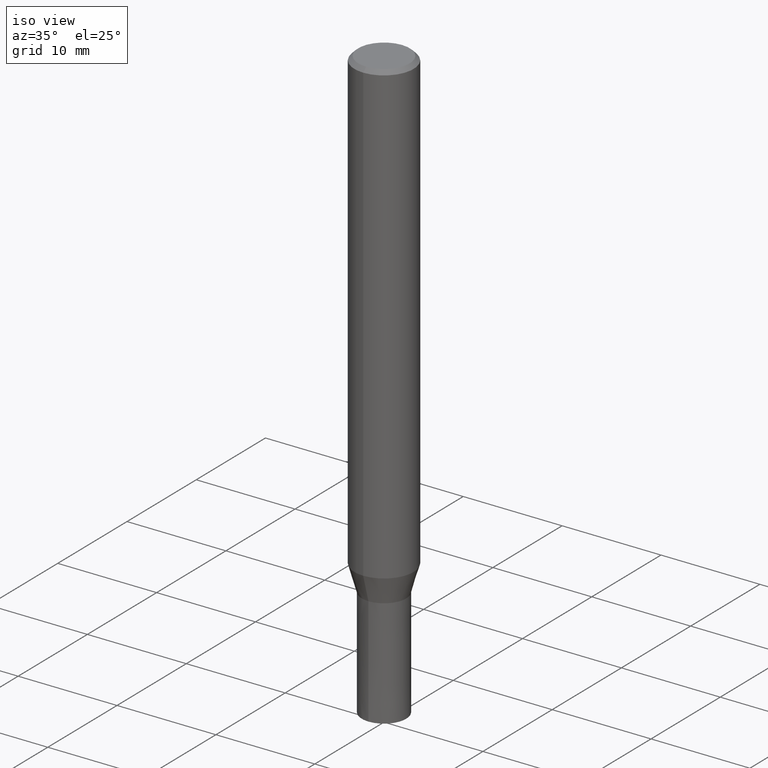
[diagram: clean part render]
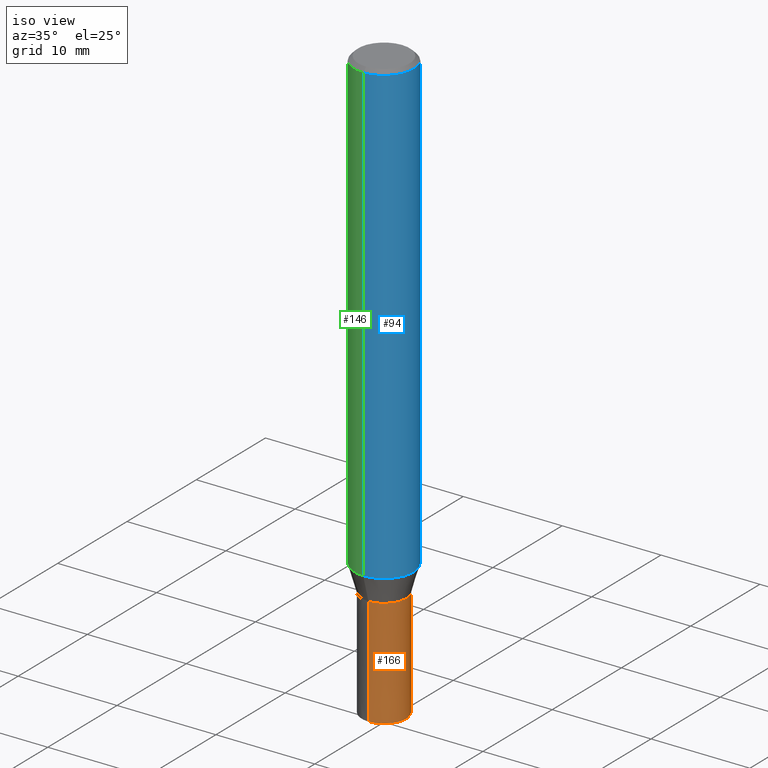
[diagram: same view with three faces highlighted in distinct colors, each labeled with its STEP entity id]
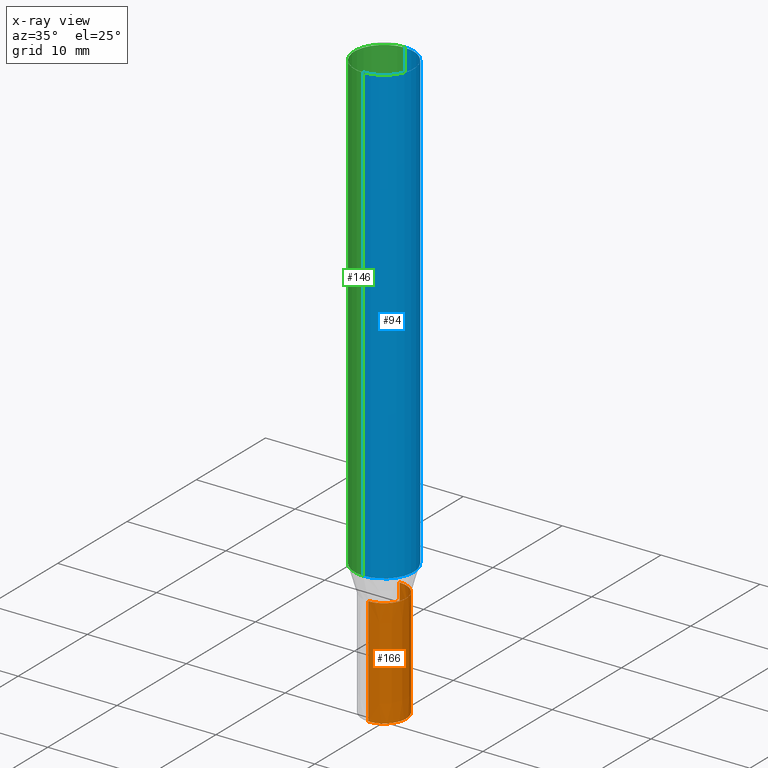
[diagram: x-ray of the same camera — body ghosted, the three highlighted faces saturated]
A machine part, iso view with three faces highlighted in distinct colors.
The next image is the same camera in x-ray (body ghosted, the three faces saturated) — at least one of them is partly hidden behind the body in this view.
Their STEP definitions:

[orange] entity #166 — the highlighted conical surface has half-angle 0.001 deg.
#86=VERTEX_POINT('',#207);
#90=EDGE_CURVE('',#148,#86,#212,.T.);
#92=EDGE_CURVE('',#156,#86,#214,.T.);
#96=EDGE_CURVE('',#108,#156,#219,.T.);
#108=VERTEX_POINT('',#232);
#120=EDGE_CURVE('',#148,#108,#247,.T.);
#148=VERTEX_POINT('',#278);
#156=VERTEX_POINT('',#286);
#166=ADVANCED_FACE('',(#297),#298,.T.);
#207=CARTESIAN_POINT('',(2.75524183546497E-016,-2.2499,-49.0));
#212=CIRCLE('',#341,2.2499);
#214=LINE('',#344,#345);
#219=CIRCLE('',#351,2.25);
#232=CARTESIAN_POINT('',(0.0,2.25,-60.0));
#247=LINE('',#387,#388);
#278=CARTESIAN_POINT('',(0.0,2.2499,-49.0));
#286=CARTESIAN_POINT('',(2.75536429610035E-016,-2.25,-60.0));
#297=FACE_OUTER_BOUND('',#449,.T.);
#298=CONICAL_SURFACE('',#450,2.24995,9.09090909067784E-006);
#341=AXIS2_PLACEMENT_3D('',#487,#488,#489);
#344=CARTESIAN_POINT('',(2.75530306578266E-016,-2.24995,-54.5));
#345=VECTOR('',#490,1.0);
#351=AXIS2_PLACEMENT_3D('',#499,#500,#501);
#387=CARTESIAN_POINT('',(-2.75530306578266E-016,2.24995,-54.5));
#388=VECTOR('',#541,1.0);
#449=EDGE_LOOP('',(#595,#596,#597,#598));
#450=AXIS2_PLACEMENT_3D('',#599,#600,#601);
#487=CARTESIAN_POINT('',(0.0,0.0,-49.0));
#488=DIRECTION('',(0.0,0.0,-1.0));
#489=DIRECTION('',(0.0,1.0,0.0));
#490=DIRECTION('',(-1.11327850343123E-021,9.09090909055262E-006,0.999999999958678));
#499=CARTESIAN_POINT('',(0.0,0.0,-60.0));
#500=DIRECTION('',(0.0,0.0,-1.0));
#501=DIRECTION('',(0.0,1.0,0.0));
#541=DIRECTION('',(-1.11327850343124E-021,9.09090909055262E-006,-0.999999999958678));
#595=ORIENTED_EDGE('',*,*,#120,.F.);
#596=ORIENTED_EDGE('',*,*,#90,.T.);
#597=ORIENTED_EDGE('',*,*,#92,.F.);
#598=ORIENTED_EDGE('',*,*,#96,.F.);
#599=CARTESIAN_POINT('',(0.0,0.0,-54.5));
#600=DIRECTION('',(0.0,-0.0,-1.0));
#601=DIRECTION('',(0.0,1.0,0.0));

[blue] entity #94 — the highlighted cylindrical surface (edge-blend (fillet) strip) has radius 3 mm, axis along (-0, -0, 1).
#94=ADVANCED_FACE('',(#216),#217,.T.);
#102=VERTEX_POINT('',#226);
#122=EDGE_CURVE('',#182,#152,#249,.T.);
#124=VERTEX_POINT('',#251);
#138=EDGE_CURVE('',#124,#182,#267,.T.);
#140=EDGE_CURVE('',#124,#102,#269,.T.);
#150=EDGE_CURVE('',#152,#102,#280,.T.);
#152=VERTEX_POINT('',#282);
#182=VERTEX_POINT('',#317);
#216=FACE_OUTER_BOUND('',#347,.T.);
#217=CYLINDRICAL_SURFACE('',#348,3.0);
#226=CARTESIAN_POINT('',(3.67381906146713E-016,-3.0,-0.399999999999999));
#249=CIRCLE('',#391,3.0);
#251=CARTESIAN_POINT('',(0.0,3.0,-0.399999999999999));
#267=LINE('',#414,#415);
#269=CIRCLE('',#418,3.0);
#280=LINE('',#431,#432);
#282=CARTESIAN_POINT('',(3.67381906146713E-016,-3.0,-46.384));
#317=CARTESIAN_POINT('',(0.0,3.0,-46.384));
#347=EDGE_LOOP('',(#492,#493,#494,#495));
#348=AXIS2_PLACEMENT_3D('',#496,#497,#498);
#391=AXIS2_PLACEMENT_3D('',#542,#543,#544);
#414=CARTESIAN_POINT('',(-3.67381906146713E-016,3.0,-23.392));
#415=VECTOR('',#568,1.0);
#418=AXIS2_PLACEMENT_3D('',#569,#570,#571);
#431=CARTESIAN_POINT('',(3.67381906146713E-016,-3.0,-23.392));
#432=VECTOR('',#583,1.0);
#492=ORIENTED_EDGE('',*,*,#138,.F.);
#493=ORIENTED_EDGE('',*,*,#140,.T.);
#494=ORIENTED_EDGE('',*,*,#150,.F.);
#495=ORIENTED_EDGE('',*,*,#122,.F.);
#496=CARTESIAN_POINT('',(0.0,0.0,-23.392));
#497=DIRECTION('',(-0.0,-0.0,1.0));
#498=DIRECTION('',(0.0,1.0,0.0));
#542=CARTESIAN_POINT('',(0.0,0.0,-46.384));
#543=DIRECTION('',(0.0,0.0,-1.0));
#544=DIRECTION('',(0.0,1.0,0.0));
#568=DIRECTION('',(0.0,0.0,-1.0));
#569=CARTESIAN_POINT('',(0.0,0.0,-0.399999999999999));
#570=DIRECTION('',(0.0,0.0,-1.0));
#571=DIRECTION('',(0.0,1.0,0.0));
#583=DIRECTION('',(-0.0,-0.0,1.0));

[green] entity #146 — the highlighted cylindrical surface (edge-blend (fillet) strip) has radius 3 mm, axis along (-0, -0, 1).
#102=VERTEX_POINT('',#226);
#124=VERTEX_POINT('',#251);
#126=EDGE_CURVE('',#152,#182,#253,.T.);
#138=EDGE_CURVE('',#124,#182,#267,.T.);
#146=ADVANCED_FACE('',(#275),#276,.T.);
#150=EDGE_CURVE('',#152,#102,#280,.T.);
#152=VERTEX_POINT('',#282);
#168=EDGE_CURVE('',#102,#124,#300,.T.);
#182=VERTEX_POINT('',#317);
#226=CARTESIAN_POINT('',(3.67381906146713E-016,-3.0,-0.399999999999999));
#251=CARTESIAN_POINT('',(0.0,3.0,-0.399999999999999));
#253=CIRCLE('',#396,3.0);
#267=LINE('',#414,#415);
#275=FACE_OUTER_BOUND('',#425,.T.);
#276=CYLINDRICAL_SURFACE('',#426,3.0);
#280=LINE('',#431,#432);
#282=CARTESIAN_POINT('',(3.67381906146713E-016,-3.0,-46.384));
#300=CIRCLE('',#453,3.0);
#317=CARTESIAN_POINT('',(0.0,3.0,-46.384));
#396=AXIS2_PLACEMENT_3D('',#545,#546,#547);
#414=CARTESIAN_POINT('',(-3.67381906146713E-016,3.0,-23.392));
#415=VECTOR('',#568,1.0);
#425=EDGE_LOOP('',(#576,#577,#578,#579));
#426=AXIS2_PLACEMENT_3D('',#580,#581,#582);
#431=CARTESIAN_POINT('',(3.67381906146713E-016,-3.0,-23.392));
#432=VECTOR('',#583,1.0);
#453=AXIS2_PLACEMENT_3D('',#602,#603,#604);
#545=CARTESIAN_POINT('',(0.0,0.0,-46.384));
#546=DIRECTION('',(0.0,0.0,-1.0));
#547=DIRECTION('',(0.0,1.0,0.0));
#568=DIRECTION('',(0.0,0.0,-1.0));
#576=ORIENTED_EDGE('',*,*,#138,.T.);
#577=ORIENTED_EDGE('',*,*,#126,.F.);
#578=ORIENTED_EDGE('',*,*,#150,.T.);
#579=ORIENTED_EDGE('',*,*,#168,.T.);
#580=CARTESIAN_POINT('',(0.0,0.0,-23.392));
#581=DIRECTION('',(-0.0,-0.0,1.0));
#582=DIRECTION('',(0.0,1.0,0.0));
#583=DIRECTION('',(-0.0,-0.0,1.0));
#602=CARTESIAN_POINT('',(0.0,0.0,-0.399999999999999));
#603=DIRECTION('',(0.0,0.0,-1.0));
#604=DIRECTION('',(0.0,1.0,0.0));